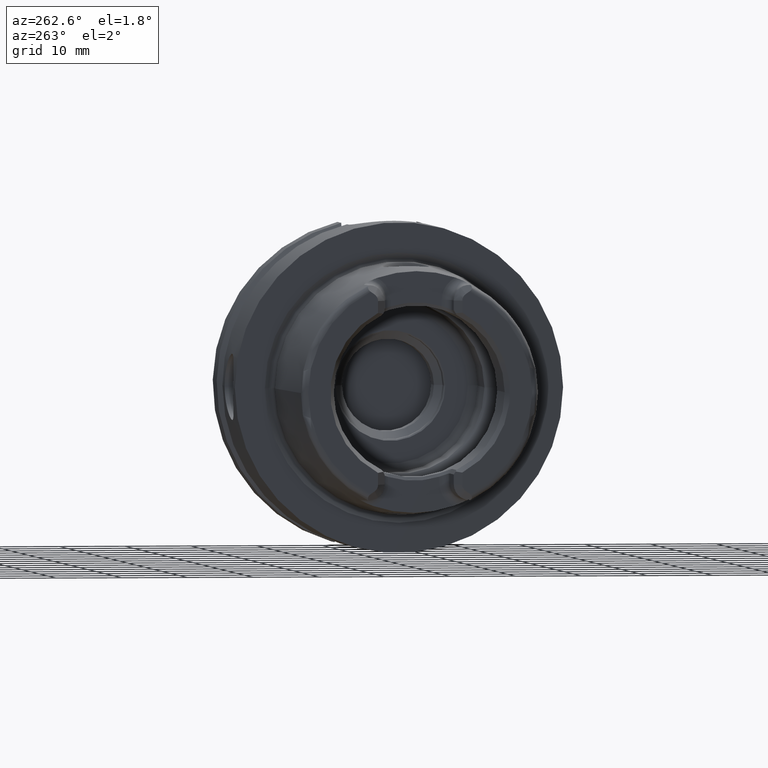
[diagram: clean part render]
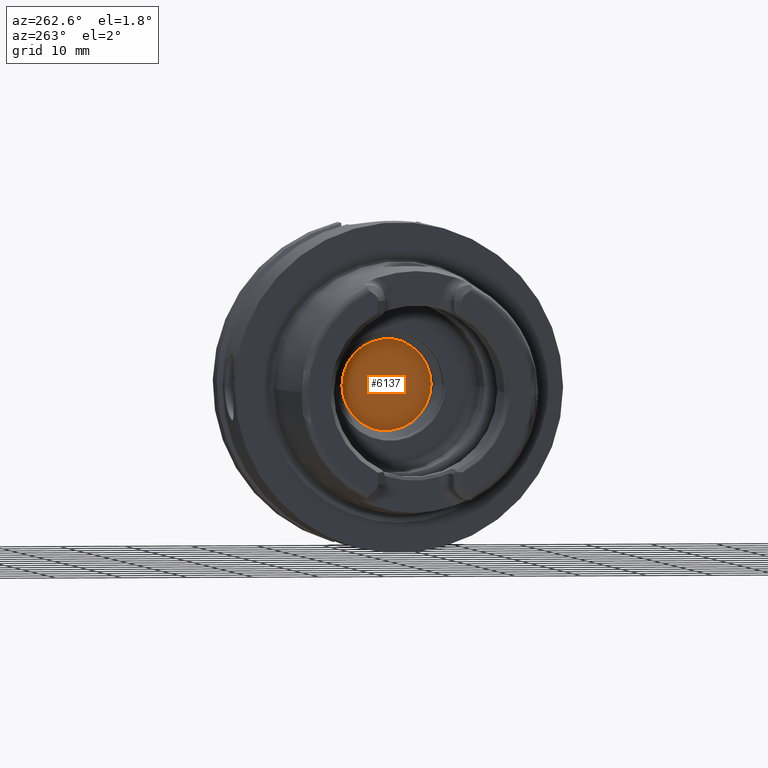
[diagram: same view with one face highlighted and labeled with its STEP entity id]
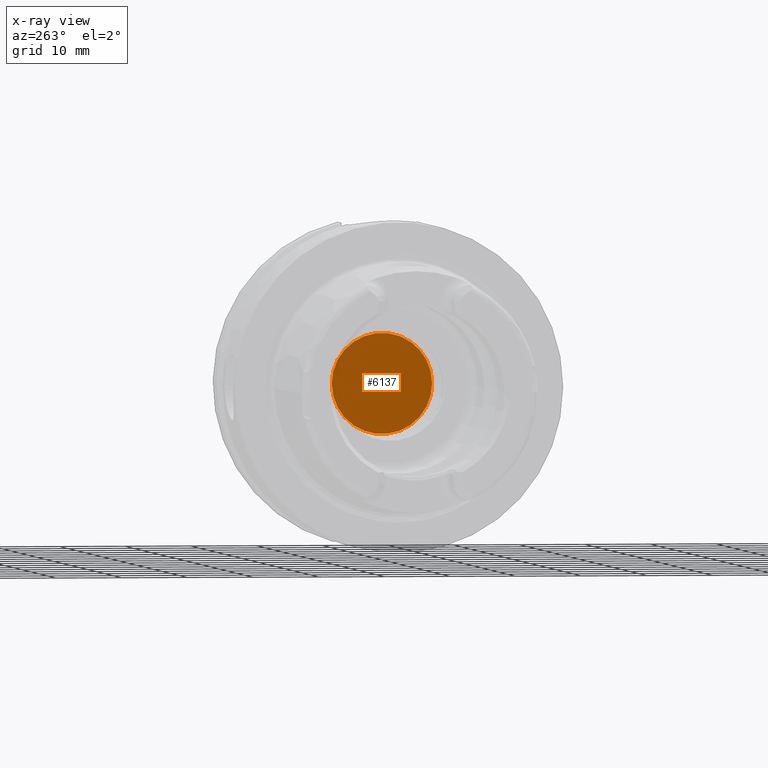
[diagram: x-ray of the same camera — body ghosted, the highlighted face saturated]
A machine part, auxiliary view. The second image highlights one B-rep face of the part: STEP entity #6137.
The next image is the same camera in x-ray: the body ghosted, the highlighted face saturated — about 1% of this face is hidden behind the body in this view.
In plain terms, the highlighted planar face has unit normal (1, 0, 0).
Its self-contained STEP definition (entity closure, byte-faithful):
#2448=CARTESIAN_POINT('',(1.995E1,0.E0,0.E0));
#2449=DIRECTION('',(1.E0,0.E0,0.E0));
#2450=DIRECTION('',(0.E0,1.E0,0.E0));
#2451=AXIS2_PLACEMENT_3D('',#2448,#2449,#2450);
#2453=CARTESIAN_POINT('',(1.995E1,0.E0,0.E0));
#2454=DIRECTION('',(1.E0,0.E0,0.E0));
#2455=DIRECTION('',(0.E0,-1.E0,0.E0));
#2456=AXIS2_PLACEMENT_3D('',#2453,#2454,#2455);
#3174=CARTESIAN_POINT('',(1.995E1,7.65E0,0.E0));
#3175=CARTESIAN_POINT('',(1.995E1,-7.65E0,0.E0));
#3176=VERTEX_POINT('',#3174);
#3177=VERTEX_POINT('',#3175);
#6127=CARTESIAN_POINT('',(1.995E1,0.E0,0.E0));
#6128=DIRECTION('',(1.E0,0.E0,0.E0));
#6129=DIRECTION('',(0.E0,-1.E0,0.E0));
#6130=AXIS2_PLACEMENT_3D('',#6127,#6128,#6129);
#6131=PLANE('',#6130);
#6132=ORIENTED_EDGE('',*,*,#6117,.T.);
#6134=ORIENTED_EDGE('',*,*,#6133,.T.);
#6135=EDGE_LOOP('',(#6132,#6134));
#6136=FACE_OUTER_BOUND('',#6135,.F.);
#6137=ADVANCED_FACE('',(#6136),#6131,.F.);
#2452=CIRCLE('',#2451,7.65E0);
#2457=CIRCLE('',#2456,7.65E0);
#6117=EDGE_CURVE('',#3176,#3177,#2452,.T.);
#6133=EDGE_CURVE('',#3177,#3176,#2457,.T.);